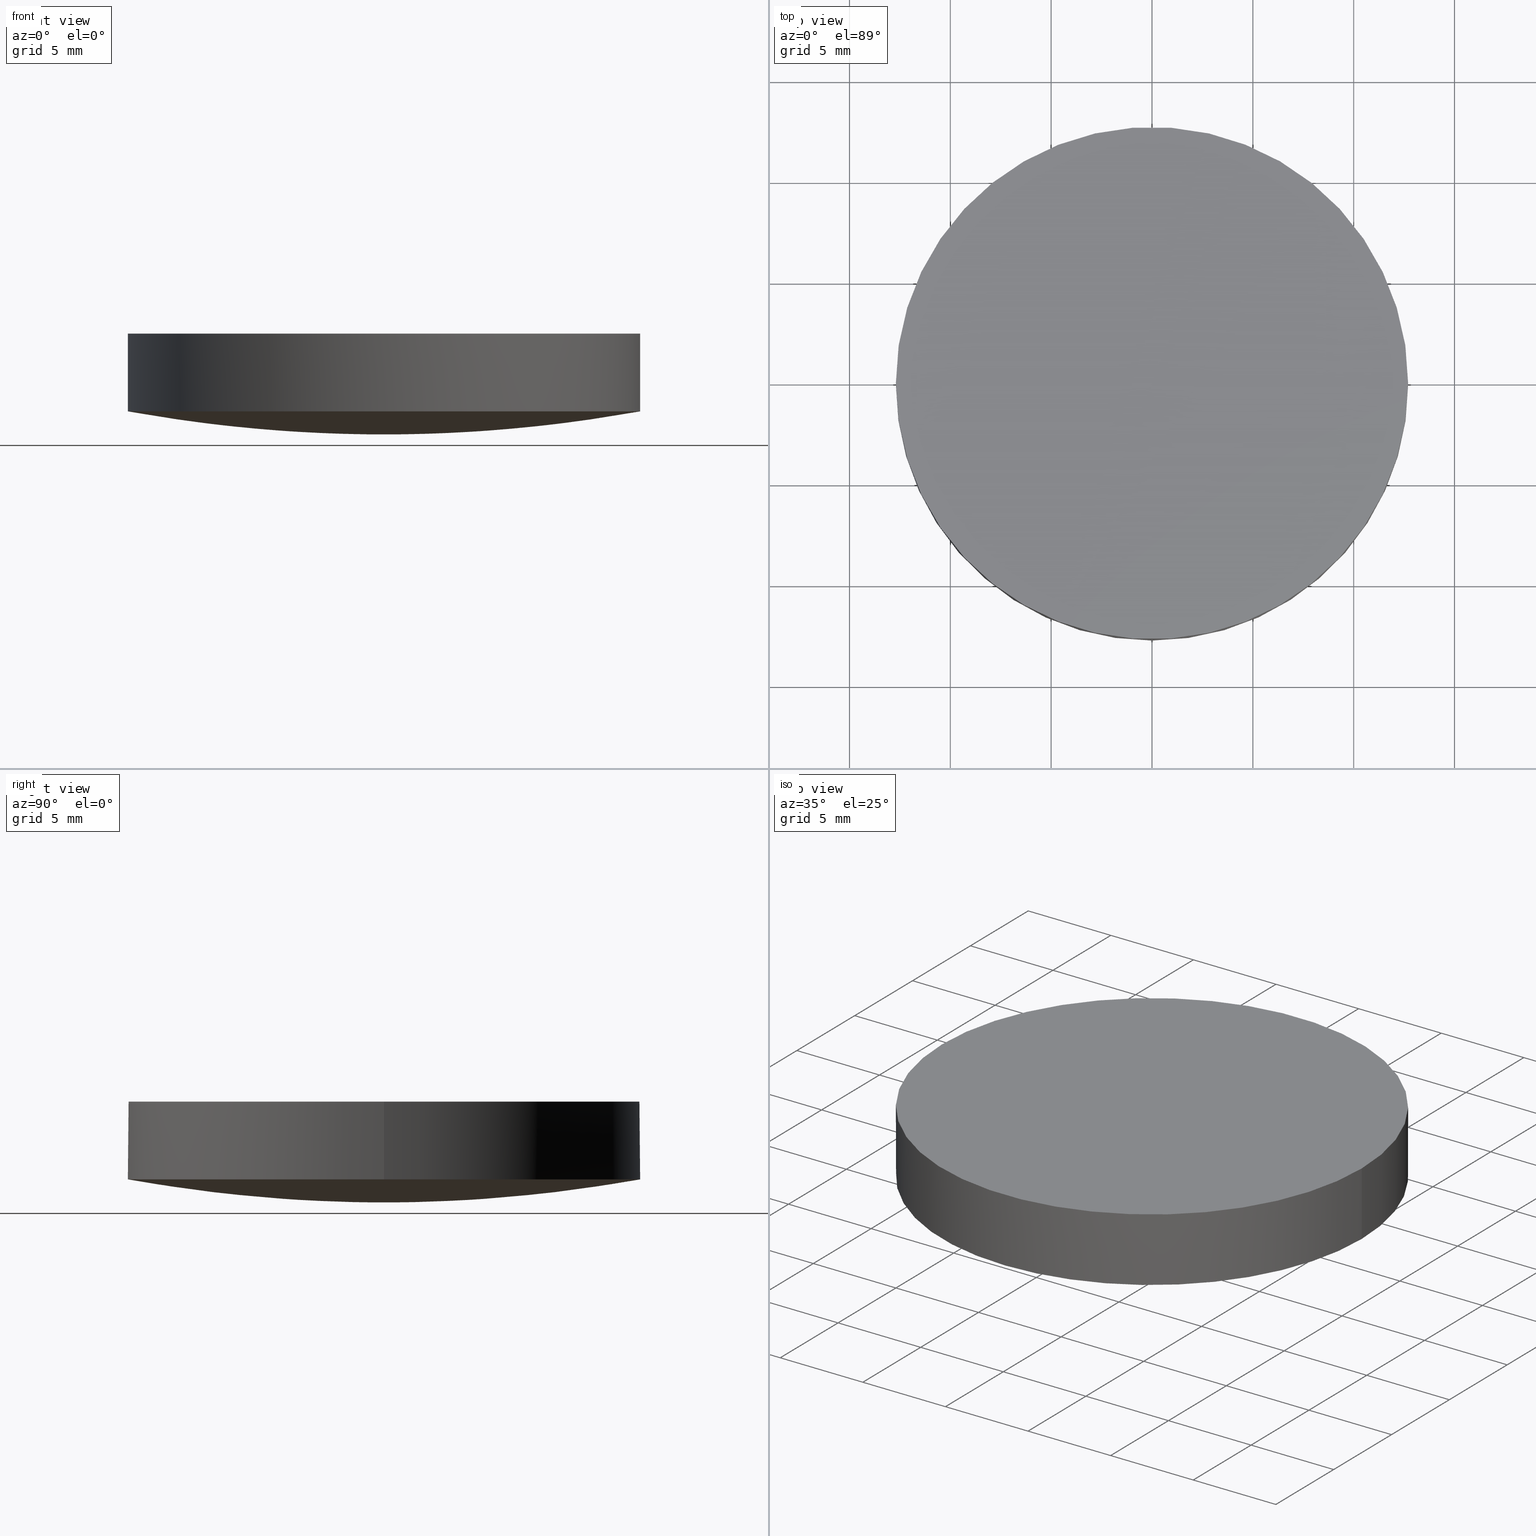
[diagram: canonical four-view strip — front | top / right | iso, engineering-drawing reading convention]
A machine part, canonical four-view strip (front | top / right | iso — engineering-drawing reading convention). The complete STEP part file that produces these views, byte-faithful:
ISO-10303-21;
HEADER;
FILE_DESCRIPTION (( 'STEP AP203' ),
    '1' );
FILE_NAME ('140011.STEP',
    '2021-03-15T05:17:14',
    ( '' ),
    ( '' ),
    'SwSTEP 2.0',
    'SolidWorks 2020',
    '' );
FILE_SCHEMA (( 'CONFIG_CONTROL_DESIGN' ));
ENDSEC;

DATA;
#1 = ORIENTED_EDGE ( 'NONE', *, *, #292, .F. ) ;
#2 = CARTESIAN_POINT ( 'NONE',  ( -5.646186924660569595, 3.457292372336599873E-16, 0.2208187616476849913 ) ) ;
#3 = CARTESIAN_POINT ( 'NONE',  ( -0.7056909850177069954, 4.321111029945389928E-17, 0.000000000000000000 ) ) ;
#4 = DIRECTION ( 'NONE',  ( 0.000000000000000000, 0.000000000000000000, 1.000000000000000000 ) ) ;
#5 = ORIENTED_EDGE ( 'NONE', *, *, #243, .F. ) ;
#6 = CARTESIAN_POINT ( 'NONE',  ( 5.646186924660570483, 5.646186924660570483, 0.2208187616476849913 ) ) ;
#7 = COORDINATED_UNIVERSAL_TIME_OFFSET ( 8, 0, .AHEAD. ) ;
#8 = COORDINATED_UNIVERSAL_TIME_OFFSET ( 8, 0, .AHEAD. ) ;
#9 = APPROVAL_DATE_TIME ( #318, #279 ) ;
#10 = CARTESIAN_POINT ( 'NONE',  ( -0.7056909850177069954, 0.7056909850177069954, 0.000000000000000000 ) ) ;
#11 = APPLICATION_CONTEXT ( 'configuration controlled 3d designs of mechanical parts and assemblies' ) ;
#12 = CARTESIAN_POINT ( 'NONE',  ( 0.000000000000000000, 0.000000000000000000, 0.000000000000000000 ) ) ;
#13 = CARTESIAN_POINT ( 'NONE',  ( -4.753890723760700398E-16, -3.881846363433560043, 0.1011880740004540008 ) ) ;
#14 = APPROVAL_PERSON_ORGANIZATION ( #195, #374, #386 ) ;
#15 = CARTESIAN_POINT ( 'NONE',  ( 0.000000000000000000, 2.117681902288059970, 0.02132316921280770147 ) ) ;
#16 = CARTESIAN_POINT ( 'NONE',  ( 8.881784197001250351E-16, -8.881784197001250351E-16, 1.142824642375869892 ) ) ;
#17 = CARTESIAN_POINT ( 'NONE',  ( 0.000000000000000000, 0.000000000000000000, 0.000000000000000000 ) ) ;
#18 = CARTESIAN_POINT ( 'NONE',  ( 0.000000000000000000, 5.646186924660569595, 0.2208187616476849913 ) ) ;
#19 = CARTESIAN_POINT ( 'NONE',  ( -8.291244220368971796, -8.291244220368971796, 0.4872908528978099896 ) ) ;
#20 = VECTOR ( 'NONE', #35, 1000.000000000000000 ) ;
#21 = CARTESIAN_POINT ( 'NONE',  ( 12.69999999999999929, -2.332952152375710015E-15, 1.142824642375869892 ) ) ;
#22 = CARTESIAN_POINT ( 'NONE',  ( 11.47043146041010075, -2.107084075924560334E-15, 0.9228980148827420349 ) ) ;
#23 = CARTESIAN_POINT ( 'NONE',  ( -7.057820453293380147, -7.057820453293380147, 0.3483339205862859833 ) ) ;
#24 = DIRECTION ( 'NONE',  ( -1.000000000000000000, 0.000000000000000000, 0.000000000000000000 ) ) ;
#25 = B_SPLINE_CURVE_WITH_KNOTS ( 'NONE', 3,
 ( #234, #50, #140, #146, #233, #172, #13, #78, #110, #204 ),
 .UNSPECIFIED., .F., .F.,
 ( 4, 1, 1, 1, 1, 1, 1, 4 ),
 ( 0.000000000000000000, 0.2934918748177540171, 0.3352534923770330022, 0.4186732724612799994, 0.5851388632198070150, 0.6682250307714420190, 0.8341866061546360234, 1.000000000000000000 ),
 .UNSPECIFIED. ) ;
#26 = CARTESIAN_POINT ( 'NONE',  ( 3.881846363433560043, -7.130836085641050103E-16, 0.1011880740004540008 ) ) ;
#27 = CLOSED_SHELL ( 'NONE', ( #263, #96, #179, #125, #329 ) ) ;
#28 = AXIS2_PLACEMENT_3D ( 'NONE', #16, #116, #88 ) ;
#29 = CARTESIAN_POINT ( 'NONE',  ( 0.000000000000000000, 0.000000000000000000, 0.000000000000000000 ) ) ;
#30 = CARTESIAN_POINT ( 'NONE',  ( 3.881846363433560043, -7.130836085641050103E-16, 0.1011880740004540008 ) ) ;
#31 = ORIENTED_EDGE ( 'NONE', *, *, #36, .F. ) ;
#32 = CARTESIAN_POINT ( 'NONE',  ( -2.117681902288059970, 1.296706181624679909E-16, 0.02132316921280770147 ) ) ;
#33 = CYLINDRICAL_SURFACE ( 'NONE', #49, 12.69999999999999929 ) ;
#34 = CARTESIAN_POINT ( 'NONE',  ( -3.881846363433560043, 3.881846363433560043, 0.1011880740004540008 ) ) ;
#35 = DIRECTION ( 'NONE',  ( 0.000000000000000000, 0.000000000000000000, 1.000000000000000000 ) ) ;
#36 = EDGE_CURVE ( 'NONE', #163, #377, #273, .T. ) ;
#37 = PERSON_AND_ORGANIZATION ( #389, #267 ) ;
#38 = FACE_OUTER_BOUND ( 'NONE', #355, .T. ) ;
#39 = CARTESIAN_POINT ( 'NONE',  ( 7.057820453293380147, 7.057820453293370377, 0.3483339205862859833 ) ) ;
#40 = PERSON_AND_ORGANIZATION ( #389, #267 ) ;
#41 = CC_DESIGN_APPROVAL ( #374, ( #197 ) ) ;
#42 = ORIENTED_EDGE ( 'NONE', *, *, #170, .T. ) ;
#43 = DATE_AND_TIME ( #168, #251 ) ;
#44 = ORIENTED_EDGE ( 'NONE', *, *, #109, .T. ) ;
#45 = AXIS2_PLACEMENT_3D ( 'NONE', #363, #241, #24 ) ;
#46 = CALENDAR_DATE ( 2021, 15, 3 ) ;
#47 = CARTESIAN_POINT ( 'NONE',  ( 0.7056909850177069954, -0.7056909850177069954, 0.000000000000000000 ) ) ;
#48 = CARTESIAN_POINT ( 'NONE',  ( 0.000000000000000000, 0.000000000000000000, 0.000000000000000000 ) ) ;
#49 = AXIS2_PLACEMENT_3D ( 'NONE', #196, #286, #159 ) ;
#50 = CARTESIAN_POINT ( 'NONE',  ( -1.404722717283039960E-15, -11.47043146041010075, 0.9228980148827420349 ) ) ;
#51 = CARTESIAN_POINT ( 'NONE',  ( 0.000000000000000000, 8.291244220368971796, 0.4872908528978099896 ) ) ;
#52 = CARTESIAN_POINT ( 'NONE',  ( 0.000000000000000000, 0.000000000000000000, 0.000000000000000000 ) ) ;
#53 = CARTESIAN_POINT ( 'NONE',  ( -5.646186924660570483, 5.646186924660570483, 0.2208187616476849913 ) ) ;
#54 = CARTESIAN_POINT ( 'NONE',  ( -8.291244220368971796, 5.076922847711930194E-16, 0.4872908528978099896 ) ) ;
#55 = CARTESIAN_POINT ( 'NONE',  ( -1.231959341978499956E-15, -10.05971144362800018, 0.7061987570028900318 ) ) ;
#56 = CARTESIAN_POINT ( 'NONE',  ( 0.000000000000000000, 12.69999999999999929, 1.142824642375869892 ) ) ;
#57 = CARTESIAN_POINT ( 'NONE',  ( 11.47043146041010075, 11.47043146041010075, 0.9228980148827421459 ) ) ;
#58 = CARTESIAN_POINT ( 'NONE',  ( -1.231959341978499956E-15, -10.05971144362800018, 0.7061987570028900318 ) ) ;
#59 = CARTESIAN_POINT ( 'NONE',  ( 10.05971144362800018, -10.05971144362800018, 0.7061987570028901429 ) ) ;
#60 = CARTESIAN_POINT ( 'NONE',  ( -1.404722717283039960E-15, -11.47043146041010075, 0.9228980148827420349 ) ) ;
#61 = CARTESIAN_POINT ( 'NONE',  ( -5.646186924660570483, -5.646186924660570483, 0.2208187616476849913 ) ) ;
#62 = AXIS2_PLACEMENT_3D ( 'NONE', #289, #4, #230 ) ;
#63 = CARTESIAN_POINT ( 'NONE',  ( -2.117681902288059970, -2.117681902288059970, 0.02132316921280770147 ) ) ;
#64 = CARTESIAN_POINT ( 'NONE',  ( -3.851859888774471706E-31, 12.70000000000000284, 1.142824642375869892 ) ) ;
#65 = CARTESIAN_POINT ( 'NONE',  ( 0.000000000000000000, 7.057820453293380147, 0.3483339205862859833 ) ) ;
#66 = CC_DESIGN_DATE_AND_TIME_ASSIGNMENT ( #138, #260, ( #197 ) ) ;
#67 = CARTESIAN_POINT ( 'NONE',  ( 0.000000000000000000, 12.69999999999999929, 1.142824642375869892 ) ) ;
#68 = APPROVAL_ROLE ( '' ) ;
#69 = VERTEX_POINT ( 'NONE', #325 ) ;
#70 = CARTESIAN_POINT ( 'NONE',  ( -7.057820453293380147, -7.057820453293380147, 0.3483339205862859833 ) ) ;
#71 = PERSON_AND_ORGANIZATION ( #389, #267 ) ;
#72 = CARTESIAN_POINT ( 'NONE',  ( 8.881784197001250351E-16, -8.881784197001250351E-16, 5.000000000000000000 ) ) ;
#73 = CARTESIAN_POINT ( 'NONE',  ( -5.646186924660570483, -5.646186924660570483, 0.2208187616476849913 ) ) ;
#74 = APPROVAL_STATUS ( 'not_yet_approved' ) ;
#75 = ORIENTED_EDGE ( 'NONE', *, *, #121, .T. ) ;
#76 = CALENDAR_DATE ( 2021, 15, 3 ) ;
#77 = DIRECTION ( 'NONE',  ( -0.000000000000000000, -0.000000000000000000, -1.000000000000000000 ) ) ;
#78 = CARTESIAN_POINT ( 'NONE',  ( -2.593412363249349958E-16, -2.117681902288059970, 0.02132316921280770147 ) ) ;
#79 = DIRECTION ( 'NONE',  ( 1.000000000000000000, 0.000000000000000000, -0.000000000000000000 ) ) ;
#80 = ADVANCED_BREP_SHAPE_REPRESENTATION ( '140011', ( #221, #62 ), #237 ) ;
#81 = CARTESIAN_POINT ( 'NONE',  ( 8.881784197001250351E-16, -8.881784197001250351E-16, 5.000000000000000000 ) ) ;
#82 = AXIS2_PLACEMENT_3D ( 'NONE', #81, #77, #205 ) ;
#83 = CARTESIAN_POINT ( 'NONE',  ( -10.05971144362800018, 10.05971144362800018, 0.7061987570028901429 ) ) ;
#84 = CARTESIAN_POINT ( 'NONE',  ( -12.69999999999999929, -12.69999999999999929, 1.142824642375869892 ) ) ;
#85 = CARTESIAN_POINT ( 'NONE',  ( -2.117681902288059970, 1.296706181624679909E-16, 0.02132316921280770147 ) ) ;
#86 = CARTESIAN_POINT ( 'NONE',  ( -12.69999999999999929, 7.776507174585690191E-16, 1.142824642375869892 ) ) ;
#87 = CARTESIAN_POINT ( 'NONE',  ( 0.000000000000000000, 11.47043146041010075, 0.9228980148827420349 ) ) ;
#88 = DIRECTION ( 'NONE',  ( 1.000000000000000000, 0.000000000000000000, 0.000000000000000000 ) ) ;
#89 = CARTESIAN_POINT ( 'NONE',  ( -3.881846363433560043, 2.376945361880350199E-16, 0.1011880740004540008 ) ) ;
#90 = FACE_OUTER_BOUND ( 'NONE', #352, .T. ) ;
#91 = CARTESIAN_POINT ( 'NONE',  ( 0.000000000000000000, 12.69999999999999929, 1.142824642375869892 ) ) ;
#92 = APPROVAL_PERSON_ORGANIZATION ( #348, #279, #68 ) ;
#93 = CARTESIAN_POINT ( 'NONE',  ( 12.70000000000000107, -8.881784197001250351E-16, 1.142824642375869892 ) ) ;
#94 = APPROVAL_PERSON_ORGANIZATION ( #100, #357, #132 ) ;
#95 = CARTESIAN_POINT ( 'NONE',  ( 0.000000000000000000, 0.7056909850177069954, 0.000000000000000000 ) ) ;
#96 = ADVANCED_FACE ( 'NONE', ( #38 ), #33, .T. ) ;
#97 = ORIENTED_EDGE ( 'NONE', *, *, #298, .T. ) ;
#98 = CARTESIAN_POINT ( 'NONE',  ( -0.7056909850177069954, 0.7056909850177069954, 0.000000000000000000 ) ) ;
#99 = APPLICATION_CONTEXT ( 'configuration controlled 3d designs of mechanical parts and assemblies' ) ;
#100 = PERSON_AND_ORGANIZATION ( #389, #267 ) ;
#101 = CARTESIAN_POINT ( 'NONE',  ( 5.646186924660570483, -5.646186924660570483, 0.2208187616476849913 ) ) ;
#102 = LINE ( 'NONE', #276, #20 ) ;
#103 = AXIS2_PLACEMENT_3D ( 'NONE', #72, #315, #166 ) ;
#104 = ORIENTED_EDGE ( 'NONE', *, *, #109, .F. ) ;
#105 = CARTESIAN_POINT ( 'NONE',  ( -5.646186924660570483, 5.646186924660570483, 0.2208187616476849913 ) ) ;
#106 = PERSON_AND_ORGANIZATION_ROLE ( 'design_owner' ) ;
#107 = APPROVAL_DATE_TIME ( #351, #357 ) ;
#108 = CALENDAR_DATE ( 2021, 15, 3 ) ;
#109 = EDGE_CURVE ( 'NONE', #189, #227, #229, .T. ) ;
#110 = CARTESIAN_POINT ( 'NONE',  ( -8.642222059890769995E-17, -0.7056909850177069954, 0.000000000000000000 ) ) ;
#111 = CARTESIAN_POINT ( 'NONE',  ( 2.117681902288059970, 2.117681902288059970, 0.02132316921280770147 ) ) ;
#112 = CARTESIAN_POINT ( 'NONE',  ( -8.291244220368971796, 5.076922847711930194E-16, 0.4872908528978099896 ) ) ;
#113 = CARTESIAN_POINT ( 'NONE',  ( 0.000000000000000000, 7.057820453293380147, 0.3483339205862859833 ) ) ;
#114 = CIRCLE ( 'NONE', #393, 12.70000000000000284 ) ;
#115 = CARTESIAN_POINT ( 'NONE',  ( -3.881846363433560043, -3.881846363433560043, 0.1011880740004540008 ) ) ;
#116 = DIRECTION ( 'NONE',  ( 0.000000000000000000, 0.000000000000000000, 1.000000000000000000 ) ) ;
#117 = CARTESIAN_POINT ( 'NONE',  ( 2.117681902288059970, -2.117681902288059970, 0.02132316921280770147 ) ) ;
#118 = CARTESIAN_POINT ( 'NONE',  ( 0.000000000000000000, 2.117681902288059970, 0.02132316921280770147 ) ) ;
#119 = CARTESIAN_POINT ( 'NONE',  ( 0.000000000000000000, 5.646186924660569595, 0.2208187616476849913 ) ) ;
#120 = CARTESIAN_POINT ( 'NONE',  ( 0.000000000000000000, 10.05971144362800018, 0.7061987570028900318 ) ) ;
#121 = EDGE_CURVE ( 'NONE', #189, #69, #154, .T. ) ;
#122 = CARTESIAN_POINT ( 'NONE',  ( -7.057820453293380147, 7.057820453293380147, 0.3483339205862859833 ) ) ;
#123 = CARTESIAN_POINT ( 'NONE',  ( -2.117681902288059970, 2.117681902288059970, 0.02132316921280770147 ) ) ;
#124 = CARTESIAN_POINT ( 'NONE',  ( 2.117681902288059970, -3.890118544874019760E-16, 0.02132316921280770147 ) ) ;
#125 = ADVANCED_FACE ( 'NONE', ( #367 ), #365, .T. ) ;
#126 = EDGE_LOOP ( 'NONE', ( #31, #277 ) ) ;
#127 = CARTESIAN_POINT ( 'NONE',  ( 0.000000000000000000, 0.000000000000000000, 0.000000000000000000 ) ) ;
#128 = CARTESIAN_POINT ( 'NONE',  ( -3.851859888774471706E-31, 12.70000000000000284, 1.142824642375869892 ) ) ;
#129 = CARTESIAN_POINT ( 'NONE',  ( -1.015384569542389983E-15, -8.291244220368971796, 0.4872908528978099896 ) ) ;
#130 = CARTESIAN_POINT ( 'NONE',  ( 12.69999999999999929, -12.69999999999999929, 1.142824642375869892 ) ) ;
#131 = LOCAL_TIME ( 13, 17, 14.00000000000000000, #192 ) ;
#132 = APPROVAL_ROLE ( '' ) ;
#133 = CARTESIAN_POINT ( 'NONE',  ( 0.000000000000000000, 3.881846363433560043, 0.1011880740004540008 ) ) ;
#134 = DATE_AND_TIME ( #108, #215 ) ;
#135 = CIRCLE ( 'NONE', #186, 12.70000000000000284 ) ;
#136 = APPROVAL_DATE_TIME ( #134, #374 ) ;
#137 = PRODUCT ( '140011', '140011', '', ( #326 ) ) ;
#138 = DATE_AND_TIME ( #76, #372 ) ;
#139 = EDGE_CURVE ( 'NONE', #69, #193, #114, .T. ) ;
#140 = CARTESIAN_POINT ( 'NONE',  ( -1.231959341978499956E-15, -10.05971144362800018, 0.7061987570028900318 ) ) ;
#141 = CC_DESIGN_PERSON_AND_ORGANIZATION_ASSIGNMENT ( #37, #324, ( #259 ) ) ;
#142 = CARTESIAN_POINT ( 'NONE',  ( -0.7056909850177069954, -0.7056909850177069954, 0.000000000000000000 ) ) ;
#143 = CARTESIAN_POINT ( 'NONE',  ( 0.000000000000000000, 0.000000000000000000, 0.000000000000000000 ) ) ;
#144 = CARTESIAN_POINT ( 'NONE',  ( 0.000000000000000000, 3.881846363433560043, 0.1011880740004540008 ) ) ;
#145 = DIRECTION ( 'NONE',  ( -1.000000000000000000, 0.000000000000000000, 0.000000000000000000 ) ) ;
#146 = CARTESIAN_POINT ( 'NONE',  ( -1.015384569542389983E-15, -8.291244220368971796, 0.4872908528978099896 ) ) ;
#147 = CARTESIAN_POINT ( 'NONE',  ( -3.881846363433560043, 3.881846363433560043, 0.1011880740004540008 ) ) ;
#148 = CARTESIAN_POINT ( 'NONE',  ( 0.000000000000000000, 8.291244220368971796, 0.4872908528978099896 ) ) ;
#149 = CARTESIAN_POINT ( 'NONE',  ( -11.47043146041010075, -11.47043146041010075, 0.9228980148827421459 ) ) ;
#150 = CARTESIAN_POINT ( 'NONE',  ( 1.734723475976807094E-15, -1.345898117247522881E-15, 1.142824642375869892 ) ) ;
#151 = CARTESIAN_POINT ( 'NONE',  ( 0.000000000000000000, 7.057820453293380147, 0.3483339205862859833 ) ) ;
#152 = CARTESIAN_POINT ( 'NONE',  ( 12.70000000000000107, -8.881784197001250351E-16, 5.000000000000000000 ) ) ;
#153 = CARTESIAN_POINT ( 'NONE',  ( 0.000000000000000000, 10.05971144362800018, 0.7061987570028900318 ) ) ;
#154 = CIRCLE ( 'NONE', #332, 12.70000000000000284 ) ;
#155 = CARTESIAN_POINT ( 'NONE',  ( 3.881846363433560043, -3.881846363433560043, 0.1011880740004540008 ) ) ;
#156 = CARTESIAN_POINT ( 'NONE',  ( 0.000000000000000000, 0.000000000000000000, 0.000000000000000000 ) ) ;
#157 = ORIENTED_EDGE ( 'NONE', *, *, #121, .F. ) ;
#158 = CARTESIAN_POINT ( 'NONE',  ( 2.117681902288059970, -2.117681902288059970, 0.02132316921280770147 ) ) ;
#159 = DIRECTION ( 'NONE',  ( 1.000000000000000000, 0.000000000000000000, 0.000000000000000000 ) ) ;
#160 = CARTESIAN_POINT ( 'NONE',  ( -3.881846363433560043, 2.376945361880350199E-16, 0.1011880740004540008 ) ) ;
#161 = CARTESIAN_POINT ( 'NONE',  ( 0.7056909850177069954, -0.7056909850177069954, 0.000000000000000000 ) ) ;
#162 = SECURITY_CLASSIFICATION_LEVEL ( 'unclassified' ) ;
#163 = VERTEX_POINT ( 'NONE', #152 ) ;
#164 = CARTESIAN_POINT ( 'NONE',  ( -6.914584744673199746E-16, -5.646186924660569595, 0.2208187616476849913 ) ) ;
#165 = APPROVAL_STATUS ( 'not_yet_approved' ) ;
#166 = DIRECTION ( 'NONE',  ( 1.000000000000000000, 0.000000000000000000, 0.000000000000000000 ) ) ;
#167 = DESIGN_CONTEXT ( 'detailed design', #99, 'design' ) ;
#168 = CALENDAR_DATE ( 2021, 15, 3 ) ;
#169 = APPLICATION_PROTOCOL_DEFINITION ( 'international standard', 'config_control_design', 1994, #11 ) ;
#170 = EDGE_CURVE ( 'NONE', #280, #189, #310, .T. ) ;
#171 = FACE_OUTER_BOUND ( 'NONE', #126, .T. ) ;
#172 = CARTESIAN_POINT ( 'NONE',  ( -6.914584744673199746E-16, -5.646186924660569595, 0.2208187616476849913 ) ) ;
#173 = CARTESIAN_POINT ( 'NONE',  ( 0.000000000000000000, 0.000000000000000000, 0.000000000000000000 ) ) ;
#174 = CARTESIAN_POINT ( 'NONE',  ( 0.000000000000000000, 11.47043146041010075, 0.9228980148827420349 ) ) ;
#175 = CARTESIAN_POINT ( 'NONE',  ( -5.646186924660569595, 3.457292372336599873E-16, 0.2208187616476849913 ) ) ;
#176 = CARTESIAN_POINT ( 'NONE',  ( 1.734723475976807094E-15, -1.345898117247522881E-15, 1.142824642375869892 ) ) ;
#177 = CARTESIAN_POINT ( 'NONE',  ( 0.000000000000000000, 7.057820453293380147, 0.3483339205862859833 ) ) ;
#178 = CARTESIAN_POINT ( 'NONE',  ( 0.000000000000000000, 11.47043146041010075, 0.9228980148827420349 ) ) ;
#179 = ADVANCED_FACE ( 'NONE', ( #90 ), #311, .T. ) ;
#180 = CARTESIAN_POINT ( 'NONE',  ( -11.47043146041010075, 7.023613586415189939E-16, 0.9228980148827420349 ) ) ;
#181 = CARTESIAN_POINT ( 'NONE',  ( -11.47043146041010075, -11.47043146041010075, 0.9228980148827421459 ) ) ;
#182 = PRODUCT_RELATED_PRODUCT_CATEGORY ( 'detail', '', ( #137 ) ) ;
#183 = CARTESIAN_POINT ( 'NONE',  ( 5.646186924660570483, -5.646186924660570483, 0.2208187616476849913 ) ) ;
#184 = CARTESIAN_POINT ( 'NONE',  ( -11.47043146041010075, 11.47043146041010075, 0.9228980148827421459 ) ) ;
#185 = CARTESIAN_POINT ( 'NONE',  ( -12.69999999999999929, 12.69999999999999929, 1.142824642375869892 ) ) ;
#186 = AXIS2_PLACEMENT_3D ( 'NONE', #359, #202, #235 ) ;
#187 = CARTESIAN_POINT ( 'NONE',  ( -0.7056909850177069954, -0.7056909850177069954, 0.000000000000000000 ) ) ;
#188 = LINE ( 'NONE', #93, #376 ) ;
#189 = VERTEX_POINT ( 'NONE', #64 ) ;
#190 = CARTESIAN_POINT ( 'NONE',  ( 0.000000000000000000, 5.646186924660569595, 0.2208187616476849913 ) ) ;
#191 = CARTESIAN_POINT ( 'NONE',  ( -12.69999999999999929, -12.69999999999999929, 1.142824642375869892 ) ) ;
#192 = COORDINATED_UNIVERSAL_TIME_OFFSET ( 8, 0, .AHEAD. ) ;
#193 = VERTEX_POINT ( 'NONE', #405 ) ;
#194 = CARTESIAN_POINT ( 'NONE',  ( 0.000000000000000000, 5.646186924660569595, 0.2208187616476849913 ) ) ;
#195 = PERSON_AND_ORGANIZATION ( #389, #267 ) ;
#196 = CARTESIAN_POINT ( 'NONE',  ( 8.881784197001250351E-16, -8.881784197001250351E-16, 1.142824642375869892 ) ) ;
#197 = SECURITY_CLASSIFICATION ( '', '', #162 ) ;
#198 = COORDINATED_UNIVERSAL_TIME_OFFSET ( 8, 0, .AHEAD. ) ;
#199 = ORIENTED_EDGE ( 'NONE', *, *, #139, .T. ) ;
#200 = PRODUCT_DEFINITION ( 'δ֪', '', #259, #167 ) ;
#201 = CARTESIAN_POINT ( 'NONE',  ( -12.70000000000000107, 6.671230152170136933E-16, 1.142824642375869892 ) ) ;
#202 = DIRECTION ( 'NONE',  ( -0.000000000000000000, -0.000000000000000000, -1.000000000000000000 ) ) ;
#203 = CARTESIAN_POINT ( 'NONE',  ( 0.000000000000000000, 11.47043146041010075, 0.9228980148827420349 ) ) ;
#204 = CARTESIAN_POINT ( 'NONE',  ( 0.000000000000000000, 0.000000000000000000, 0.000000000000000000 ) ) ;
#205 = DIRECTION ( 'NONE',  ( 1.000000000000000000, 0.000000000000000000, 0.000000000000000000 ) ) ;
#206 = CARTESIAN_POINT ( 'NONE',  ( 7.057820453293370377, -7.057820453293380147, 0.3483339205862859833 ) ) ;
#207 = CARTESIAN_POINT ( 'NONE',  ( 12.69999999999999929, 12.69999999999999929, 1.142824642375869892 ) ) ;
#208 = CARTESIAN_POINT ( 'NONE',  ( -2.117681902288059970, -2.117681902288059970, 0.02132316921280770147 ) ) ;
#209 = CARTESIAN_POINT ( 'NONE',  ( -1.555301434917140010E-15, -12.69999999999999929, 1.142824642375869892 ) ) ;
#210 = EDGE_CURVE ( 'NONE', #280, #377, #102, .T. ) ;
#211 = CARTESIAN_POINT ( 'NONE',  ( 12.69999999999999929, 12.69999999999999929, 1.142824642375869892 ) ) ;
#212 = CARTESIAN_POINT ( 'NONE',  ( 11.47043146041010075, -11.47043146041010075, 0.9228980148827421459 ) ) ;
#213 = CARTESIAN_POINT ( 'NONE',  ( 3.881846363433560043, 3.881846363433549829, 0.1011880740004540008 ) ) ;
#214 = CARTESIAN_POINT ( 'NONE',  ( 0.000000000000000000, 12.69999999999999929, 1.142824642375869892 ) ) ;
#215 = LOCAL_TIME ( 13, 17, 14.00000000000000000, #7 ) ;
#216 = CARTESIAN_POINT ( 'NONE',  ( -11.47043146041010075, 11.47043146041010075, 0.9228980148827421459 ) ) ;
#217 = CARTESIAN_POINT ( 'NONE',  ( 0.000000000000000000, 0.000000000000000000, 0.000000000000000000 ) ) ;
#218 = AXIS2_PLACEMENT_3D ( 'NONE', #291, #334, #79 ) ;
#219 = CARTESIAN_POINT ( 'NONE',  ( 0.000000000000000000, 0.000000000000000000, 0.000000000000000000 ) ) ;
#220 = ORIENTED_EDGE ( 'NONE', *, *, #292, .T. ) ;
#221 = MANIFOLD_SOLID_BREP ( '����1', #27 ) ;
#222 = DIRECTION ( 'NONE',  ( 0.000000000000000000, 0.000000000000000000, 1.000000000000000000 ) ) ;
#223 = DATE_TIME_ROLE ( 'creation_date' ) ;
#224 = EDGE_LOOP ( 'NONE', ( #381, #1, #404, #349, #322 ) ) ;
#225 = CARTESIAN_POINT ( 'NONE',  ( 0.000000000000000000, 7.057820453293380147, 0.3483339205862859833 ) ) ;
#226 = PERSON_AND_ORGANIZATION_ROLE ( 'classification_officer' ) ;
#227 = VERTEX_POINT ( 'NONE', #127 ) ;
#228 = CARTESIAN_POINT ( 'NONE',  ( 8.291244220368971796, -8.291244220368971796, 0.4872908528978099896 ) ) ;
#229 = B_SPLINE_CURVE_WITH_KNOTS ( 'NONE', 3,
 ( #128, #203, #245, #51, #113, #336, #392, #118, #269, #239 ),
 .UNSPECIFIED., .F., .F.,
 ( 4, 1, 1, 1, 1, 1, 1, 4 ),
 ( 0.000000000000000000, 0.2934918748177540171, 0.3352534923770330022, 0.4186732724612799994, 0.5851388632198070150, 0.6682250307714420190, 0.8341866061546360234, 1.000000000000000000 ),
 .UNSPECIFIED. ) ;
#230 = DIRECTION ( 'NONE',  ( 1.000000000000000000, 0.000000000000000000, 0.000000000000000000 ) ) ;
#231 = EDGE_LOOP ( 'NONE', ( #199, #97, #104, #75 ) ) ;
#232 = SHAPE_DEFINITION_REPRESENTATION ( #295, #80 ) ;
#233 = CARTESIAN_POINT ( 'NONE',  ( -8.643337227082449863E-16, -7.057820453293380147, 0.3483339205862859833 ) ) ;
#234 = CARTESIAN_POINT ( 'NONE',  ( -1.555301434917141588E-15, -12.70000000000000462, 1.142824642375869892 ) ) ;
#235 = DIRECTION ( 'NONE',  ( -1.000000000000000000, 0.000000000000000000, 0.000000000000000000 ) ) ;
#236 = PLANE ( 'NONE',  #218 ) ;
#237 =( GEOMETRIC_REPRESENTATION_CONTEXT ( 3 ) GLOBAL_UNCERTAINTY_ASSIGNED_CONTEXT ( ( #323 ) ) GLOBAL_UNIT_ASSIGNED_CONTEXT ( ( #290, #358, #254 ) ) REPRESENTATION_CONTEXT ( 'NONE', 'WORKASPACE' ) );
#238 = CARTESIAN_POINT ( 'NONE',  ( -6.914584744673199746E-16, -5.646186924660569595, 0.2208187616476849913 ) ) ;
#239 = CARTESIAN_POINT ( 'NONE',  ( 0.000000000000000000, 0.000000000000000000, 0.000000000000000000 ) ) ;
#240 = CARTESIAN_POINT ( 'NONE',  ( 7.057820453293380147, -1.296500584062369945E-15, 0.3483339205862859833 ) ) ;
#241 = DIRECTION ( 'NONE',  ( -0.000000000000000000, -0.000000000000000000, -1.000000000000000000 ) ) ;
#242 = CC_DESIGN_DATE_AND_TIME_ASSIGNMENT ( #43, #223, ( #200 ) ) ;
#243 = EDGE_CURVE ( 'NONE', #69, #163, #188, .T. ) ;
#244 = CARTESIAN_POINT ( 'NONE',  ( -1.015384569542389983E-15, -8.291244220368971796, 0.4872908528978099896 ) ) ;
#245 = CARTESIAN_POINT ( 'NONE',  ( 0.000000000000000000, 10.05971144362800018, 0.7061987570028900318 ) ) ;
#246 = CARTESIAN_POINT ( 'NONE',  ( 5.646186924660570483, 5.646186924660570483, 0.2208187616476849913 ) ) ;
#247 = CARTESIAN_POINT ( 'NONE',  ( -10.05971144362800018, -10.05971144362800018, 0.7061987570028901429 ) ) ;
#248 = CARTESIAN_POINT ( 'NONE',  ( 8.291244220368971796, 8.291244220368971796, 0.4872908528978099896 ) ) ;
#249 = CARTESIAN_POINT ( 'NONE',  ( -2.593412363249349958E-16, -2.117681902288059970, 0.02132316921280770147 ) ) ;
#250 = CARTESIAN_POINT ( 'NONE',  ( 3.881846363433560043, 3.881846363433549829, 0.1011880740004540008 ) ) ;
#251 = LOCAL_TIME ( 13, 17, 14.00000000000000000, #314 ) ;
#252 = ORIENTED_EDGE ( 'NONE', *, *, #170, .F. ) ;
#253 = CARTESIAN_POINT ( 'NONE',  ( -4.753890723760700398E-16, -3.881846363433560043, 0.1011880740004540008 ) ) ;
#254 =( NAMED_UNIT ( * ) SI_UNIT ( $, .STERADIAN. ) SOLID_ANGLE_UNIT ( ) );
#255 = ORIENTED_EDGE ( 'NONE', *, *, #210, .T. ) ;
#256 = CARTESIAN_POINT ( 'NONE',  ( 0.000000000000000000, 8.291244220368971796, 0.4872908528978099896 ) ) ;
#257 = CARTESIAN_POINT ( 'NONE',  ( 0.000000000000000000, 0.000000000000000000, 0.000000000000000000 ) ) ;
#258 = CARTESIAN_POINT ( 'NONE',  ( 7.057820453293370377, -7.057820453293380147, 0.3483339205862859833 ) ) ;
#259 = PRODUCT_DEFINITION_FORMATION_WITH_SPECIFIED_SOURCE ( '�κ�', '', #137, .NOT_KNOWN. ) ;
#260 = DATE_TIME_ROLE ( 'classification_date' ) ;
#261 = CARTESIAN_POINT ( 'NONE',  ( 0.7056909850177069954, 0.7056909850177069954, 0.000000000000000000 ) ) ;
#262 = CARTESIAN_POINT ( 'NONE',  ( 0.000000000000000000, 0.7056909850177069954, 0.000000000000000000 ) ) ;
#263 = ADVANCED_FACE ( 'NONE', ( #403 ), #293, .T. ) ;
#264 = CARTESIAN_POINT ( 'NONE',  ( 0.000000000000000000, 2.117681902288059970, 0.02132316921280770147 ) ) ;
#265 = CARTESIAN_POINT ( 'NONE',  ( -2.593412363249349958E-16, -2.117681902288059970, 0.02132316921280770147 ) ) ;
#266 = CARTESIAN_POINT ( 'NONE',  ( -8.291244220368971796, 8.291244220368971796, 0.4872908528978099896 ) ) ;
#267 = ORGANIZATION ( 'δָ��', 'δָ��', '' ) ;
#268 = CARTESIAN_POINT ( 'NONE',  ( 8.291244220368971796, -1.523076854313580044E-15, 0.4872908528978099896 ) ) ;
#269 = CARTESIAN_POINT ( 'NONE',  ( 0.000000000000000000, 0.7056909850177069954, 0.000000000000000000 ) ) ;
#270 = CARTESIAN_POINT ( 'NONE',  ( -8.291244220368971796, -8.291244220368971796, 0.4872908528978099896 ) ) ;
#271 = DIRECTION ( 'NONE',  ( -0.000000000000000000, -0.000000000000000000, -1.000000000000000000 ) ) ;
#272 = CARTESIAN_POINT ( 'NONE',  ( 11.47043146041010075, -11.47043146041010075, 0.9228980148827421459 ) ) ;
#273 = CIRCLE ( 'NONE', #103, 12.69999999999999929 ) ;
#274 = CARTESIAN_POINT ( 'NONE',  ( 10.05971144362800018, 10.05971144362800018, 0.7061987570028901429 ) ) ;
#275 = CARTESIAN_POINT ( 'NONE',  ( 2.117681902288059970, 2.117681902288059970, 0.02132316921280770147 ) ) ;
#276 = CARTESIAN_POINT ( 'NONE',  ( -12.69999999999999751, 6.671230152170134961E-16, 1.142824642375869892 ) ) ;
#277 = ORIENTED_EDGE ( 'NONE', *, *, #398, .F. ) ;
#278 = CARTESIAN_POINT ( 'NONE',  ( 0.7056909850177069954, 0.7056909850177069954, 0.000000000000000000 ) ) ;
#279 = APPROVAL ( #287, 'δָ��' ) ;
#280 = VERTEX_POINT ( 'NONE', #201 ) ;
#281 = CARTESIAN_POINT ( 'NONE',  ( -3.881846363433560043, -3.881846363433560043, 0.1011880740004540008 ) ) ;
#282 = CARTESIAN_POINT ( 'NONE',  ( -1.555301434917140010E-15, -12.69999999999999929, 1.142824642375869892 ) ) ;
#283 = CALENDAR_DATE ( 2021, 15, 3 ) ;
#284 = CARTESIAN_POINT ( 'NONE',  ( 5.646186924660569595, -1.037187711700979962E-15, 0.2208187616476849913 ) ) ;
#285 = PERSON_AND_ORGANIZATION_ROLE ( 'design_supplier' ) ;
#286 = DIRECTION ( 'NONE',  ( 0.000000000000000000, 0.000000000000000000, 1.000000000000000000 ) ) ;
#287 = APPROVAL_STATUS ( 'not_yet_approved' ) ;
#288 = LOCAL_TIME ( 13, 17, 14.00000000000000000, #198 ) ;
#289 = CARTESIAN_POINT ( 'NONE',  ( 0.000000000000000000, 0.000000000000000000, 0.000000000000000000 ) ) ;
#290 =( LENGTH_UNIT ( ) NAMED_UNIT ( * ) SI_UNIT ( .MILLI., .METRE. ) );
#291 = CARTESIAN_POINT ( 'NONE',  ( 0.000000000000000000, 26.11199999999999832, 5.000000000000000000 ) ) ;
#292 = EDGE_CURVE ( 'NONE', #193, #280, #135, .T. ) ;
#293 =( BOUNDED_SURFACE ( )  B_SPLINE_SURFACE ( 3, 2, ( 
 ( #67, #185, #309, #191, #282, #130, #21, #211, #91 ),
 ( #87, #216, #180, #149, #369, #272, #339, #57, #399 ),
 ( #153, #83, #362, #335, #55, #59, #391, #274, #401 ),
 ( #337, #303, #112, #270, #244, #306, #268, #248, #364 ),
 ( #177, #122, #371, #23, #296, #206, #240, #343, #151 ),
 ( #119, #53, #175, #61, #238, #183, #299, #246, #18 ),
 ( #144, #147, #89, #115, #301, #396, #26, #213, #341 ),
 ( #15, #394, #85, #208, #265, #117, #366, #111, #264 ),
 ( #328, #10, #330, #142, #331, #47, #294, #261, #262 ),
 ( #12, #17, #387, #143, #52, #173, #48, #390, #356 ) ),
 .UNSPECIFIED., .F., .T., .T. ) 
 B_SPLINE_SURFACE_WITH_KNOTS ( ( 4, 1, 1, 1, 1, 1, 1, 4 ),
 ( 3, 2, 2, 2, 3 ),
 ( 0.000000000000000000, 0.2934918748177540171, 0.3352534923770330022, 0.4186732724612799994, 0.5851388632198070150, 0.6682250307714420190, 0.8341866061546360234, 1.000000000000000000 ),
 ( 0.000000000000000000, 90.00000000000000000, 180.0000000000000000, 270.0000000000000000, 360.0000000000000000 ),
 .UNSPECIFIED. ) 
 GEOMETRIC_REPRESENTATION_ITEM ( )  RATIONAL_B_SPLINE_SURFACE ( (
 ( 1.000000000000000000, 0.7071067811865480168, 1.000000000000000000, 0.7071067811865480168, 1.000000000000000000, 0.7071067811865480168, 1.000000000000000000, 0.7071067811865480168, 1.000000000000000000),
 ( 1.000000000000000000, 0.7071067811865480168, 1.000000000000000000, 0.7071067811865480168, 1.000000000000000000, 0.7071067811865480168, 1.000000000000000000, 0.7071067811865480168, 1.000000000000000000),
 ( 1.000000000000000000, 0.7071067811865480168, 1.000000000000000000, 0.7071067811865480168, 1.000000000000000000, 0.7071067811865480168, 1.000000000000000000, 0.7071067811865480168, 1.000000000000000000),
 ( 1.000000000000000000, 0.7071067811865480168, 1.000000000000000000, 0.7071067811865480168, 1.000000000000000000, 0.7071067811865480168, 1.000000000000000000, 0.7071067811865480168, 1.000000000000000000),
 ( 1.000000000000000000, 0.7071067811865480168, 1.000000000000000000, 0.7071067811865480168, 1.000000000000000000, 0.7071067811865480168, 1.000000000000000000, 0.7071067811865480168, 1.000000000000000000),
 ( 1.000000000000000000, 0.7071067811865480168, 1.000000000000000000, 0.7071067811865480168, 1.000000000000000000, 0.7071067811865480168, 1.000000000000000000, 0.7071067811865480168, 1.000000000000000000),
 ( 1.000000000000000000, 0.7071067811865480168, 1.000000000000000000, 0.7071067811865480168, 1.000000000000000000, 0.7071067811865480168, 1.000000000000000000, 0.7071067811865480168, 1.000000000000000000),
 ( 1.000000000000000000, 0.7071067811865480168, 1.000000000000000000, 0.7071067811865480168, 1.000000000000000000, 0.7071067811865480168, 1.000000000000000000, 0.7071067811865480168, 1.000000000000000000),
 ( 1.000000000000000000, 0.7071067811865480168, 1.000000000000000000, 0.7071067811865480168, 1.000000000000000000, 0.7071067811865480168, 1.000000000000000000, 0.7071067811865480168, 1.000000000000000000),
 ( 1.000000000000000000, 0.7071067811865480168, 1.000000000000000000, 0.7071067811865480168, 1.000000000000000000, 0.7071067811865480168, 1.000000000000000000, 0.7071067811865480168, 1.000000000000000000) ) ) 
 REPRESENTATION_ITEM ( '' )  SURFACE ( )  );
#294 = CARTESIAN_POINT ( 'NONE',  ( 0.7056909850177069954, -1.296333308983620122E-16, 0.000000000000000000 ) ) ;
#295 = PRODUCT_DEFINITION_SHAPE ( 'NONE', 'NONE',  #200 ) ;
#296 = CARTESIAN_POINT ( 'NONE',  ( -8.643337227082449863E-16, -7.057820453293380147, 0.3483339205862859833 ) ) ;
#297 = CARTESIAN_POINT ( 'NONE',  ( 0.000000000000000000, 10.05971144362800018, 0.7061987570028900318 ) ) ;
#298 = EDGE_CURVE ( 'NONE', #193, #227, #25, .T. ) ;
#299 = CARTESIAN_POINT ( 'NONE',  ( 5.646186924660569595, -1.037187711700979962E-15, 0.2208187616476849913 ) ) ;
#300 = CARTESIAN_POINT ( 'NONE',  ( 10.05971144362800018, 10.05971144362800018, 0.7061987570028901429 ) ) ;
#301 = CARTESIAN_POINT ( 'NONE',  ( -4.753890723760700398E-16, -3.881846363433560043, 0.1011880740004540008 ) ) ;
#302 = CARTESIAN_POINT ( 'NONE',  ( -11.47043146041010075, 7.023613586415189939E-16, 0.9228980148827420349 ) ) ;
#303 = CARTESIAN_POINT ( 'NONE',  ( -8.291244220368971796, 8.291244220368971796, 0.4872908528978099896 ) ) ;
#304 = CARTESIAN_POINT ( 'NONE',  ( 12.69999999999999929, -12.69999999999999929, 1.142824642375869892 ) ) ;
#305 = CC_DESIGN_SECURITY_CLASSIFICATION ( #197, ( #259 ) ) ;
#306 = CARTESIAN_POINT ( 'NONE',  ( 8.291244220368971796, -8.291244220368971796, 0.4872908528978099896 ) ) ;
#307 = CARTESIAN_POINT ( 'NONE',  ( 10.05971144362800018, -10.05971144362800018, 0.7061987570028901429 ) ) ;
#308 = CC_DESIGN_PERSON_AND_ORGANIZATION_ASSIGNMENT ( #71, #226, ( #197 ) ) ;
#309 = CARTESIAN_POINT ( 'NONE',  ( -12.69999999999999929, 7.776507174585690191E-16, 1.142824642375869892 ) ) ;
#310 = CIRCLE ( 'NONE', #45, 12.70000000000000284 ) ;
#311 =( BOUNDED_SURFACE ( )  B_SPLINE_SURFACE ( 3, 2, ( 
 ( #214, #342, #86, #84, #209, #304, #338, #207, #56 ),
 ( #178, #184, #302, #181, #60, #212, #22, #400, #174 ),
 ( #120, #340, #397, #247, #58, #307, #333, #300, #297 ),
 ( #148, #266, #54, #19, #129, #228, #379, #382, #256 ),
 ( #65, #353, #350, #70, #316, #258, #320, #39, #225 ),
 ( #194, #105, #2, #73, #164, #101, #284, #6, #190 ),
 ( #133, #34, #160, #281, #253, #155, #30, #250, #313 ),
 ( #378, #123, #32, #63, #249, #158, #124, #275, #346 ),
 ( #95, #98, #3, #187, #375, #161, #312, #278, #317 ),
 ( #219, #402, #373, #257, #156, #380, #344, #29, #217 ) ),
 .UNSPECIFIED., .F., .T., .T. ) 
 B_SPLINE_SURFACE_WITH_KNOTS ( ( 4, 1, 1, 1, 1, 1, 1, 4 ),
 ( 3, 2, 2, 2, 3 ),
 ( 0.000000000000000000, 0.2934918748177540171, 0.3352534923770330022, 0.4186732724612799994, 0.5851388632198070150, 0.6682250307714420190, 0.8341866061546360234, 1.000000000000000000 ),
 ( 0.000000000000000000, 90.00000000000000000, 180.0000000000000000, 270.0000000000000000, 360.0000000000000000 ),
 .UNSPECIFIED. ) 
 GEOMETRIC_REPRESENTATION_ITEM ( )  RATIONAL_B_SPLINE_SURFACE ( (
 ( 1.000000000000000000, 0.7071067811865480168, 1.000000000000000000, 0.7071067811865480168, 1.000000000000000000, 0.7071067811865480168, 1.000000000000000000, 0.7071067811865480168, 1.000000000000000000),
 ( 1.000000000000000000, 0.7071067811865480168, 1.000000000000000000, 0.7071067811865480168, 1.000000000000000000, 0.7071067811865480168, 1.000000000000000000, 0.7071067811865480168, 1.000000000000000000),
 ( 1.000000000000000000, 0.7071067811865480168, 1.000000000000000000, 0.7071067811865480168, 1.000000000000000000, 0.7071067811865480168, 1.000000000000000000, 0.7071067811865480168, 1.000000000000000000),
 ( 1.000000000000000000, 0.7071067811865480168, 1.000000000000000000, 0.7071067811865480168, 1.000000000000000000, 0.7071067811865480168, 1.000000000000000000, 0.7071067811865480168, 1.000000000000000000),
 ( 1.000000000000000000, 0.7071067811865480168, 1.000000000000000000, 0.7071067811865480168, 1.000000000000000000, 0.7071067811865480168, 1.000000000000000000, 0.7071067811865480168, 1.000000000000000000),
 ( 1.000000000000000000, 0.7071067811865480168, 1.000000000000000000, 0.7071067811865480168, 1.000000000000000000, 0.7071067811865480168, 1.000000000000000000, 0.7071067811865480168, 1.000000000000000000),
 ( 1.000000000000000000, 0.7071067811865480168, 1.000000000000000000, 0.7071067811865480168, 1.000000000000000000, 0.7071067811865480168, 1.000000000000000000, 0.7071067811865480168, 1.000000000000000000),
 ( 1.000000000000000000, 0.7071067811865480168, 1.000000000000000000, 0.7071067811865480168, 1.000000000000000000, 0.7071067811865480168, 1.000000000000000000, 0.7071067811865480168, 1.000000000000000000),
 ( 1.000000000000000000, 0.7071067811865480168, 1.000000000000000000, 0.7071067811865480168, 1.000000000000000000, 0.7071067811865480168, 1.000000000000000000, 0.7071067811865480168, 1.000000000000000000),
 ( 1.000000000000000000, 0.7071067811865480168, 1.000000000000000000, 0.7071067811865480168, 1.000000000000000000, 0.7071067811865480168, 1.000000000000000000, 0.7071067811865480168, 1.000000000000000000) ) ) 
 REPRESENTATION_ITEM ( '' )  SURFACE ( )  );
#312 = CARTESIAN_POINT ( 'NONE',  ( 0.7056909850177069954, -1.296333308983620122E-16, 0.000000000000000000 ) ) ;
#313 = CARTESIAN_POINT ( 'NONE',  ( 0.000000000000000000, 3.881846363433560043, 0.1011880740004540008 ) ) ;
#314 = COORDINATED_UNIVERSAL_TIME_OFFSET ( 8, 0, .AHEAD. ) ;
#315 = DIRECTION ( 'NONE',  ( -0.000000000000000000, -0.000000000000000000, -1.000000000000000000 ) ) ;
#316 = CARTESIAN_POINT ( 'NONE',  ( -8.643337227082449863E-16, -7.057820453293380147, 0.3483339205862859833 ) ) ;
#317 = CARTESIAN_POINT ( 'NONE',  ( 0.000000000000000000, 0.7056909850177069954, 0.000000000000000000 ) ) ;
#318 = DATE_AND_TIME ( #46, #131 ) ;
#319 = ORIENTED_EDGE ( 'NONE', *, *, #298, .F. ) ;
#320 = CARTESIAN_POINT ( 'NONE',  ( 7.057820453293380147, -1.296500584062369945E-15, 0.3483339205862859833 ) ) ;
#321 = PERSON_AND_ORGANIZATION ( #389, #267 ) ;
#322 = ORIENTED_EDGE ( 'NONE', *, *, #36, .T. ) ;
#323 = UNCERTAINTY_MEASURE_WITH_UNIT (LENGTH_MEASURE( 1.000000000000000082E-05 ), #290, 'distance_accuracy_value', 'NONE');
#324 = PERSON_AND_ORGANIZATION_ROLE ( 'creator' ) ;
#325 = CARTESIAN_POINT ( 'NONE',  ( 12.70000000000000462, -8.881784197001248379E-16, 1.142824642375869892 ) ) ;
#326 = MECHANICAL_CONTEXT ( 'NONE', #11, 'mechanical' ) ;
#327 = CC_DESIGN_APPROVAL ( #357, ( #200 ) ) ;
#328 = CARTESIAN_POINT ( 'NONE',  ( 0.000000000000000000, 0.7056909850177069954, 0.000000000000000000 ) ) ;
#329 = ADVANCED_FACE ( 'NONE', ( #171 ), #236, .T. ) ;
#330 = CARTESIAN_POINT ( 'NONE',  ( -0.7056909850177069954, 4.321111029945389928E-17, 0.000000000000000000 ) ) ;
#331 = CARTESIAN_POINT ( 'NONE',  ( -8.642222059890769995E-17, -0.7056909850177069954, 0.000000000000000000 ) ) ;
#332 = AXIS2_PLACEMENT_3D ( 'NONE', #150, #395, #370 ) ;
#333 = CARTESIAN_POINT ( 'NONE',  ( 10.05971144362800018, -1.847939012967749934E-15, 0.7061987570028900318 ) ) ;
#334 = DIRECTION ( 'NONE',  ( 0.000000000000000000, 0.000000000000000000, 1.000000000000000000 ) ) ;
#335 = CARTESIAN_POINT ( 'NONE',  ( -10.05971144362800018, -10.05971144362800018, 0.7061987570028901429 ) ) ;
#336 = CARTESIAN_POINT ( 'NONE',  ( 0.000000000000000000, 5.646186924660569595, 0.2208187616476849913 ) ) ;
#337 = CARTESIAN_POINT ( 'NONE',  ( 0.000000000000000000, 8.291244220368971796, 0.4872908528978099896 ) ) ;
#338 = CARTESIAN_POINT ( 'NONE',  ( 12.69999999999999929, -2.332952152375710015E-15, 1.142824642375869892 ) ) ;
#339 = CARTESIAN_POINT ( 'NONE',  ( 11.47043146041010075, -2.107084075924560334E-15, 0.9228980148827420349 ) ) ;
#340 = CARTESIAN_POINT ( 'NONE',  ( -10.05971144362800018, 10.05971144362800018, 0.7061987570028901429 ) ) ;
#341 = CARTESIAN_POINT ( 'NONE',  ( 0.000000000000000000, 3.881846363433560043, 0.1011880740004540008 ) ) ;
#342 = CARTESIAN_POINT ( 'NONE',  ( -12.69999999999999929, 12.69999999999999929, 1.142824642375869892 ) ) ;
#343 = CARTESIAN_POINT ( 'NONE',  ( 7.057820453293380147, 7.057820453293370377, 0.3483339205862859833 ) ) ;
#344 = CARTESIAN_POINT ( 'NONE',  ( 0.000000000000000000, 0.000000000000000000, 0.000000000000000000 ) ) ;
#345 = CC_DESIGN_PERSON_AND_ORGANIZATION_ASSIGNMENT ( #384, #106, ( #137 ) ) ;
#346 = CARTESIAN_POINT ( 'NONE',  ( 0.000000000000000000, 2.117681902288059970, 0.02132316921280770147 ) ) ;
#347 = ORIENTED_EDGE ( 'NONE', *, *, #398, .T. ) ;
#348 = PERSON_AND_ORGANIZATION ( #389, #267 ) ;
#349 = ORIENTED_EDGE ( 'NONE', *, *, #243, .T. ) ;
#350 = CARTESIAN_POINT ( 'NONE',  ( -7.057820453293380147, 4.321668613541229862E-16, 0.3483339205862859833 ) ) ;
#351 = DATE_AND_TIME ( #283, #288 ) ;
#352 = EDGE_LOOP ( 'NONE', ( #319, #220, #42, #44 ) ) ;
#353 = CARTESIAN_POINT ( 'NONE',  ( -7.057820453293380147, 7.057820453293380147, 0.3483339205862859833 ) ) ;
#354 = APPLICATION_PROTOCOL_DEFINITION ( 'international standard', 'config_control_design', 1994, #99 ) ;
#355 = EDGE_LOOP ( 'NONE', ( #252, #255, #347, #5, #157 ) ) ;
#356 = CARTESIAN_POINT ( 'NONE',  ( 0.000000000000000000, 0.000000000000000000, 0.000000000000000000 ) ) ;
#357 = APPROVAL ( #74, 'δָ��' ) ;
#358 =( NAMED_UNIT ( * ) PLANE_ANGLE_UNIT ( ) SI_UNIT ( $, .RADIAN. ) );
#359 = CARTESIAN_POINT ( 'NONE',  ( 1.734723475976807094E-15, -1.345898117247522881E-15, 1.142824642375869892 ) ) ;
#360 = CARTESIAN_POINT ( 'NONE',  ( -12.69999999999999751, 6.671230152170134961E-16, 5.000000000000000000 ) ) ;
#361 = CIRCLE ( 'NONE', #82, 12.69999999999999929 ) ;
#362 = CARTESIAN_POINT ( 'NONE',  ( -10.05971144362800018, 6.159796709892499782E-16, 0.7061987570028900318 ) ) ;
#363 = CARTESIAN_POINT ( 'NONE',  ( 1.734723475976807094E-15, -1.345898117247522881E-15, 1.142824642375869892 ) ) ;
#364 = CARTESIAN_POINT ( 'NONE',  ( 0.000000000000000000, 8.291244220368971796, 0.4872908528978099896 ) ) ;
#365 = CYLINDRICAL_SURFACE ( 'NONE', #28, 12.69999999999999929 ) ;
#366 = CARTESIAN_POINT ( 'NONE',  ( 2.117681902288059970, -3.890118544874019760E-16, 0.02132316921280770147 ) ) ;
#367 = FACE_OUTER_BOUND ( 'NONE', #224, .T. ) ;
#368 = CC_DESIGN_PERSON_AND_ORGANIZATION_ASSIGNMENT ( #321, #285, ( #259 ) ) ;
#369 = CARTESIAN_POINT ( 'NONE',  ( -1.404722717283039960E-15, -11.47043146041010075, 0.9228980148827420349 ) ) ;
#370 = DIRECTION ( 'NONE',  ( -1.000000000000000000, 0.000000000000000000, 0.000000000000000000 ) ) ;
#371 = CARTESIAN_POINT ( 'NONE',  ( -7.057820453293380147, 4.321668613541229862E-16, 0.3483339205862859833 ) ) ;
#372 = LOCAL_TIME ( 13, 17, 14.00000000000000000, #8 ) ;
#373 = CARTESIAN_POINT ( 'NONE',  ( 0.000000000000000000, 0.000000000000000000, 0.000000000000000000 ) ) ;
#374 = APPROVAL ( #165, 'δָ��' ) ;
#375 = CARTESIAN_POINT ( 'NONE',  ( -8.642222059890769995E-17, -0.7056909850177069954, 0.000000000000000000 ) ) ;
#376 = VECTOR ( 'NONE', #222, 1000.000000000000000 ) ;
#377 = VERTEX_POINT ( 'NONE', #360 ) ;
#378 = CARTESIAN_POINT ( 'NONE',  ( 0.000000000000000000, 2.117681902288059970, 0.02132316921280770147 ) ) ;
#379 = CARTESIAN_POINT ( 'NONE',  ( 8.291244220368971796, -1.523076854313580044E-15, 0.4872908528978099896 ) ) ;
#380 = CARTESIAN_POINT ( 'NONE',  ( 0.000000000000000000, 0.000000000000000000, 0.000000000000000000 ) ) ;
#381 = ORIENTED_EDGE ( 'NONE', *, *, #210, .F. ) ;
#382 = CARTESIAN_POINT ( 'NONE',  ( 8.291244220368971796, 8.291244220368971796, 0.4872908528978099896 ) ) ;
#383 = CC_DESIGN_PERSON_AND_ORGANIZATION_ASSIGNMENT ( #40, #385, ( #200 ) ) ;
#384 = PERSON_AND_ORGANIZATION ( #389, #267 ) ;
#385 = PERSON_AND_ORGANIZATION_ROLE ( 'creator' ) ;
#386 = APPROVAL_ROLE ( '' ) ;
#387 = CARTESIAN_POINT ( 'NONE',  ( 0.000000000000000000, 0.000000000000000000, 0.000000000000000000 ) ) ;
#388 = CC_DESIGN_APPROVAL ( #279, ( #259 ) ) ;
#389 = PERSON ( 'δָ��', 'δָ��', 'δָ��', ('δָ��'), ('δָ��'), ('δָ��') ) ;
#390 = CARTESIAN_POINT ( 'NONE',  ( 0.000000000000000000, 0.000000000000000000, 0.000000000000000000 ) ) ;
#391 = CARTESIAN_POINT ( 'NONE',  ( 10.05971144362800018, -1.847939012967749934E-15, 0.7061987570028900318 ) ) ;
#392 = CARTESIAN_POINT ( 'NONE',  ( 0.000000000000000000, 3.881846363433560043, 0.1011880740004540008 ) ) ;
#393 = AXIS2_PLACEMENT_3D ( 'NONE', #176, #271, #145 ) ;
#394 = CARTESIAN_POINT ( 'NONE',  ( -2.117681902288059970, 2.117681902288059970, 0.02132316921280770147 ) ) ;
#395 = DIRECTION ( 'NONE',  ( -0.000000000000000000, -0.000000000000000000, -1.000000000000000000 ) ) ;
#396 = CARTESIAN_POINT ( 'NONE',  ( 3.881846363433560043, -3.881846363433560043, 0.1011880740004540008 ) ) ;
#397 = CARTESIAN_POINT ( 'NONE',  ( -10.05971144362800018, 6.159796709892499782E-16, 0.7061987570028900318 ) ) ;
#398 = EDGE_CURVE ( 'NONE', #377, #163, #361, .T. ) ;
#399 = CARTESIAN_POINT ( 'NONE',  ( 0.000000000000000000, 11.47043146041010075, 0.9228980148827420349 ) ) ;
#400 = CARTESIAN_POINT ( 'NONE',  ( 11.47043146041010075, 11.47043146041010075, 0.9228980148827421459 ) ) ;
#401 = CARTESIAN_POINT ( 'NONE',  ( 0.000000000000000000, 10.05971144362800018, 0.7061987570028900318 ) ) ;
#402 = CARTESIAN_POINT ( 'NONE',  ( 0.000000000000000000, 0.000000000000000000, 0.000000000000000000 ) ) ;
#403 = FACE_OUTER_BOUND ( 'NONE', #231, .T. ) ;
#404 = ORIENTED_EDGE ( 'NONE', *, *, #139, .F. ) ;
#405 = CARTESIAN_POINT ( 'NONE',  ( -1.555301434917141588E-15, -12.70000000000000462, 1.142824642375869892 ) ) ;
ENDSEC;
END-ISO-10303-21;
